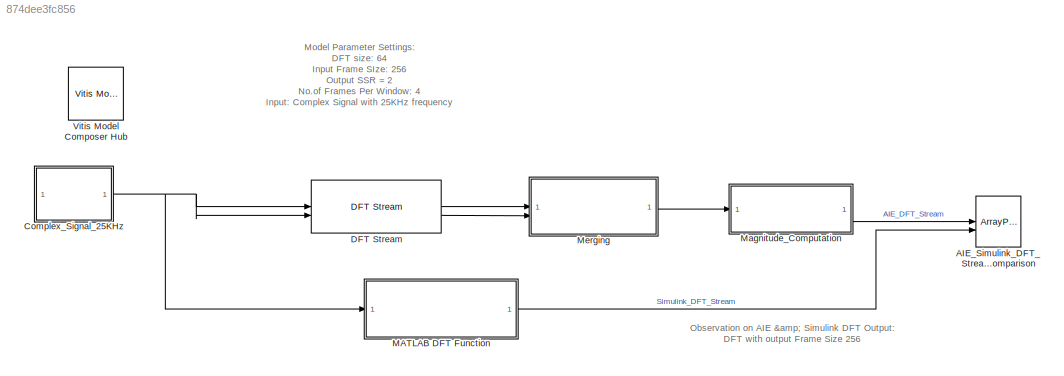
MODEL slx_874dee3fc856
KIND model
CONFIG AbsTol = auto
CONFIG EnableMultiTasking = off
CONFIG FixedStep = auto
CONFIG MaxStep = auto
CONFIG MinStep = auto
CONFIG RelTol = 1e-3
CONFIG SampleTimeConstraint = Unconstrained
CONFIG SolverName = VariableStepAuto
CONFIG StartTime = 0.0
CONFIG StopTime = 1
BLOCK [ArrayPlot] AIE_Simulink_DFT_Stream_Comparison
  GraphicalSettings = {"Style":{"BackgroundColor":[0.15686274509803921,0.15686274509803921,0.15686274509803921],"AxesColor":[0,0,0],"LabelsColor":[0.68627450980392157,0.68627450980392157,0.68627450980392157],"PreserveColors":false,"Visible":[true,true],"LineStyle":["-","-"],"LineColor":[[1,0.41176470588235292,0.16078431372549021],[0,1,0]],"LineWidth":[1.5,1.5],"Marker":[".","."],"FontSize":"small"},"Cursors":{"Enabled"...<+485ch>
  NumInputPorts = 2
  ScopeFrameLocation = window
  ShowLegend = on
  Visible = on
  WasSavedAsWebScope = on
  WindowPosition = [215.000000,122.000000,845.000000,423.000000,]
  YLimits = [-80,720]
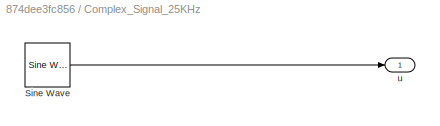
BLOCK [SubSystem] Complex_Signal_25KHz
BLOCK [Reference] Complex_Signal_25KHz/Sine Wave  REF=dspsrcs4/Sine Wave
  SourceBlock = dspsrcs4/Sine Wave
  SourceType = Sine Wave
BLOCK [Outport] Complex_Signal_25KHz/u
BLOCK [Reference] DFT Stream  REF=aieDSP/DFT Stream
  SourceBlock = aieDSP/DFT Stream
  SourceType = DFT Stream
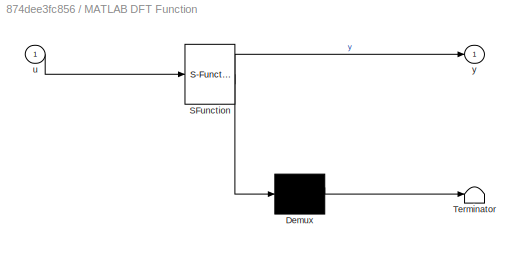
BLOCK [SubSystem] MATLAB DFT Function
  ErrorFcn = Stateflow.Translate.translate
  PermitHierarchicalResolution = ExplicitOnly
  SFBlockType = MATLAB Function
  TreatAsAtomicUnit = on
BLOCK [Demux] MATLAB DFT Function/ Demux 
  Outputs = 1
BLOCK [S-Function] MATLAB DFT Function/ SFunction 
  EnableBusSupport = off
  FunctionName = sf_sfun
  PortCounts = [1 2]
  SFcnIsStateOwnerBlock = off
  SFunctionDeploymentMode = off
  Tag = Stateflow S-Function 2
BLOCK [Terminator] MATLAB DFT Function/ Terminator 
BLOCK [Inport] MATLAB DFT Function/u
BLOCK [Outport] MATLAB DFT Function/y
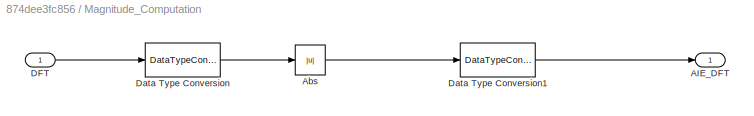
BLOCK [SubSystem] Magnitude_Computation
BLOCK [Outport] Magnitude_Computation/AIE_DFT
BLOCK [Abs] Magnitude_Computation/Abs
  SaturateOnIntegerOverflow = off
BLOCK [Inport] Magnitude_Computation/DFT
BLOCK [DataTypeConversion] Magnitude_Computation/Data Type Conversion
  OutDataTypeStr = single
  RndMeth = Floor
  SaturateOnIntegerOverflow = off
BLOCK [DataTypeConversion] Magnitude_Computation/Data Type Conversion1
  OutDataTypeStr = int16
  RndMeth = Floor
  SaturateOnIntegerOverflow = off
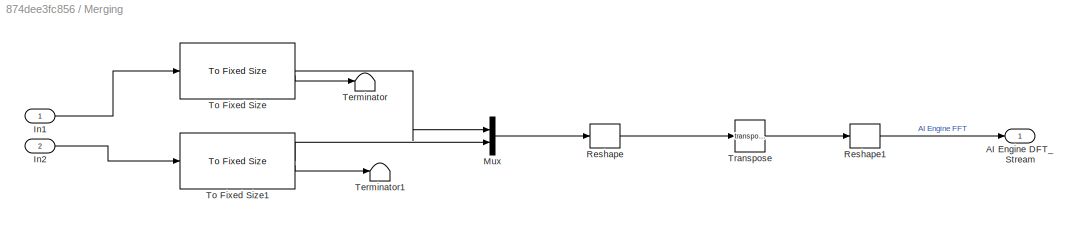
BLOCK [SubSystem] Merging
BLOCK [Outport] Merging/AI Engine DFT_Stream
BLOCK [Inport] Merging/In1
BLOCK [Inport] Merging/In2
  Port = 2
BLOCK [Mux] Merging/Mux
  DisplayOption = bar
  Inputs = 2
BLOCK [Reshape] Merging/Reshape
  OutputDimensionality = Customize
  OutputDimensions = [128, 2]
BLOCK [Reshape] Merging/Reshape1
  OutputDimensions = [1, 10]
BLOCK [Terminator] Merging/Terminator
BLOCK [Terminator] Merging/Terminator1
BLOCK [Reference] Merging/To Fixed Size  REF=aieUtilities/To Fixed Size
  SourceBlock = aieUtilities/To Fixed Size
  SourceType = To Fixed Size
BLOCK [Reference] Merging/To Fixed Size1  REF=aieUtilities/To Fixed Size
  SourceBlock = aieUtilities/To Fixed Size
  SourceType = To Fixed Size
BLOCK [Math] Merging/Transpose
  Operator = transpose
BLOCK [Reference] Vitis Model Composer Hub  REF=vmcUtilities/Vitis Model Composer Hub
  SourceBlock = vmcUtilities/Vitis Model Composer Hub
  SourceType = VMC Hub
  Tag = genX
  UserDataPersistent = on
ANNOTATION (root): Model Parameter Settings: DFT size: 64 Input Frame SIze: 256 Output SSR = 2 No.of Frames Per Window: 4 Input: Complex Signal with 25KHz frequency Input sampling rate: 100KHz
ANNOTATION (root): Observation on AIE & Simulink DFT Output: DFT with output Frame Size 256
LINE Complex_Signal_25KHz/Sine Wave:1 -> Complex_Signal_25KHz/u:1
NET Complex_Signal_25KHz:1 -> DFT Stream:1, DFT Stream:2, MATLAB DFT Function:1
LINE DFT Stream:1 -> Merging:1
LINE DFT Stream:2 -> Merging:2
LINE MATLAB DFT Function:1 -> AIE_Simulink_DFT_Stream_Comparison:2
LINE Magnitude_Computation/Abs:1 -> Magnitude_Computation/Data Type Conversion1:1
LINE Magnitude_Computation/DFT:1 -> Magnitude_Computation/Data Type Conversion:1
LINE Magnitude_Computation/Data Type Conversion1:1 -> Magnitude_Computation/AIE_DFT:1
LINE Magnitude_Computation/Data Type Conversion:1 -> Magnitude_Computation/Abs:1
LINE Magnitude_Computation:1 -> AIE_Simulink_DFT_Stream_Comparison:1
LINE Merging/In1:1 -> Merging/To Fixed Size:1
LINE Merging/In2:1 -> Merging/To Fixed Size1:1
LINE Merging/Mux:1 -> Merging/Reshape:1
LINE Merging/Reshape1:1 -> Merging/AI Engine DFT_Stream:1
LINE Merging/Reshape:1 -> Merging/Transpose:1
LINE Merging/To Fixed Size1:1 -> Merging/Mux:2
LINE Merging/To Fixed Size1:2 -> Merging/Terminator1:1
LINE Merging/To Fixed Size:1 -> Merging/Mux:1
LINE Merging/To Fixed Size:2 -> Merging/Terminator:1
LINE Merging/Transpose:1 -> Merging/Reshape1:1
LINE Merging:1 -> Magnitude_Computation:1
note: NET lines group one-source signal fan-out (src -> all destinations, sorted); 1:1 wires keep LINE
CHART MATLAB DFT Function states=1 transitions=1
  STATE_LABEL 'eML_blk_kernel()'
  STATE_LABEL 'SCRIPT:\n\nfunction y = fcn(u)\n\nDFT_Size = 64; % DFT Size\nFramesPerWindow = 4; %No.of Frames Per Window\n\n\nX = single(complex(zeros(DFT_Size,FramesPerWindow)));\n\nfor m = 1:1:FramesPerWindow\nfor k = 0:DFT_Size-1\n    for n = 0:DFT_Size-1\n        X(k+1,m) = X(k+1,m) + u(n+1)*exp(-1i*2*pi*n*k/DFT_Size);\n    end\nend\nend\n\ny = abs(reshape(X,DFT_Size*FramesPerWindow,1));'
CHART  states=0 transitions=0
